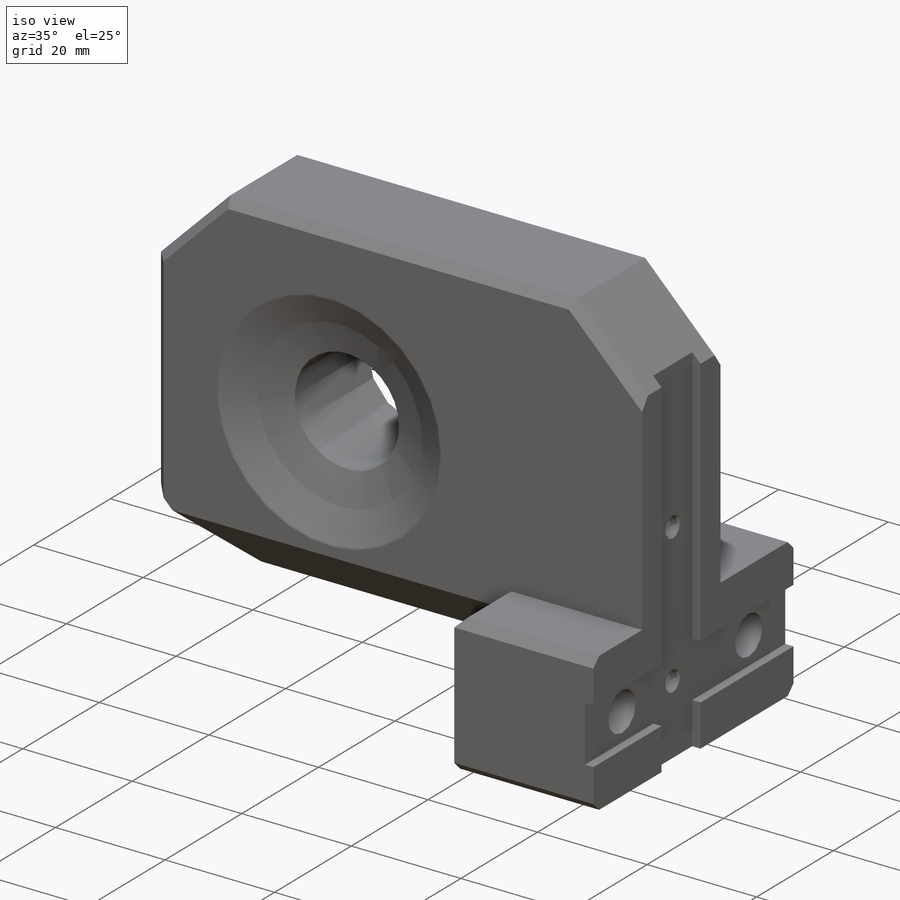
[diagram: iso view]
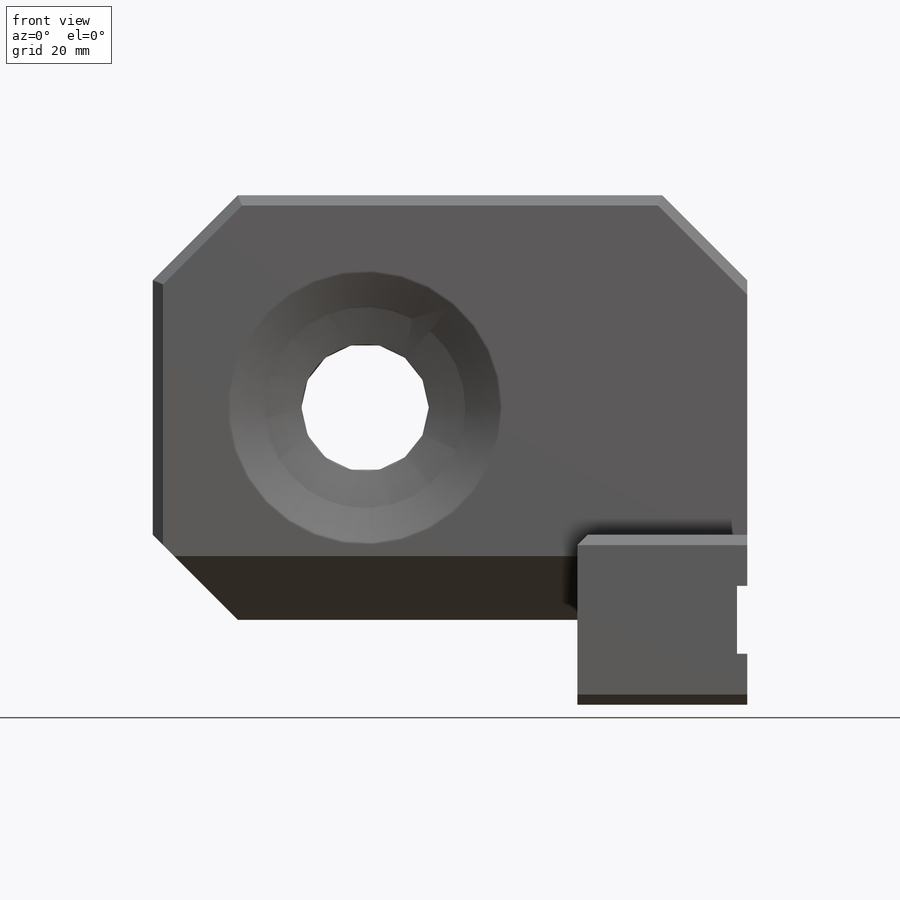
[diagram: front view]
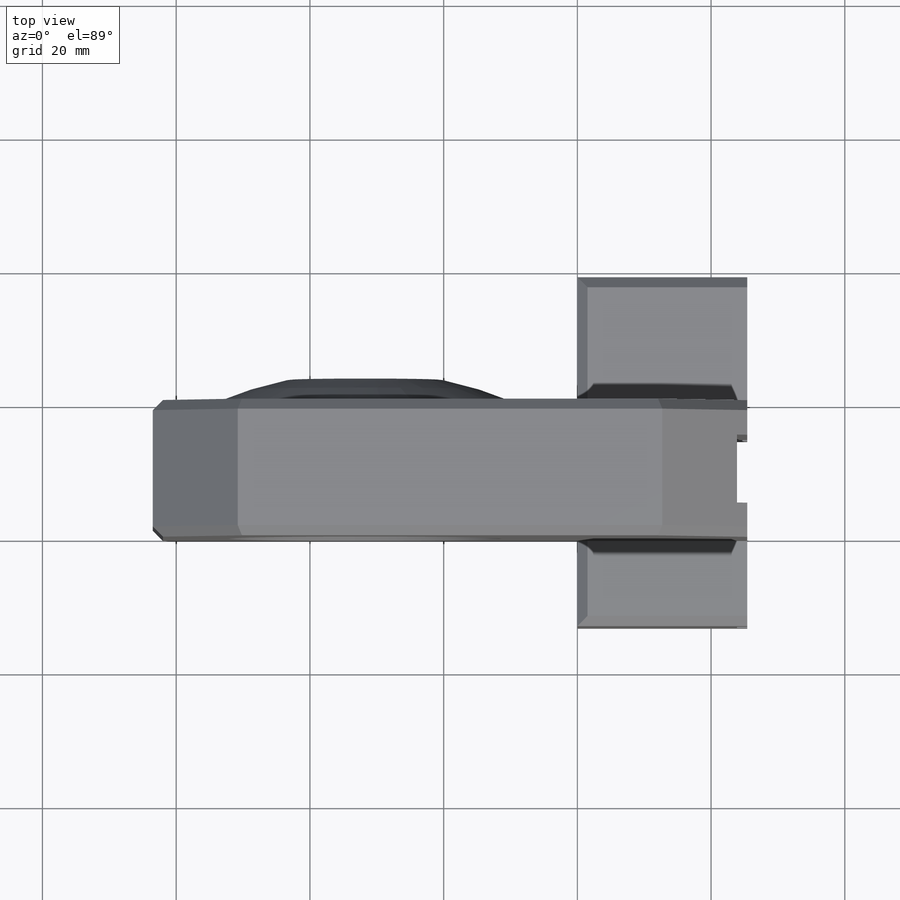
[diagram: top view]
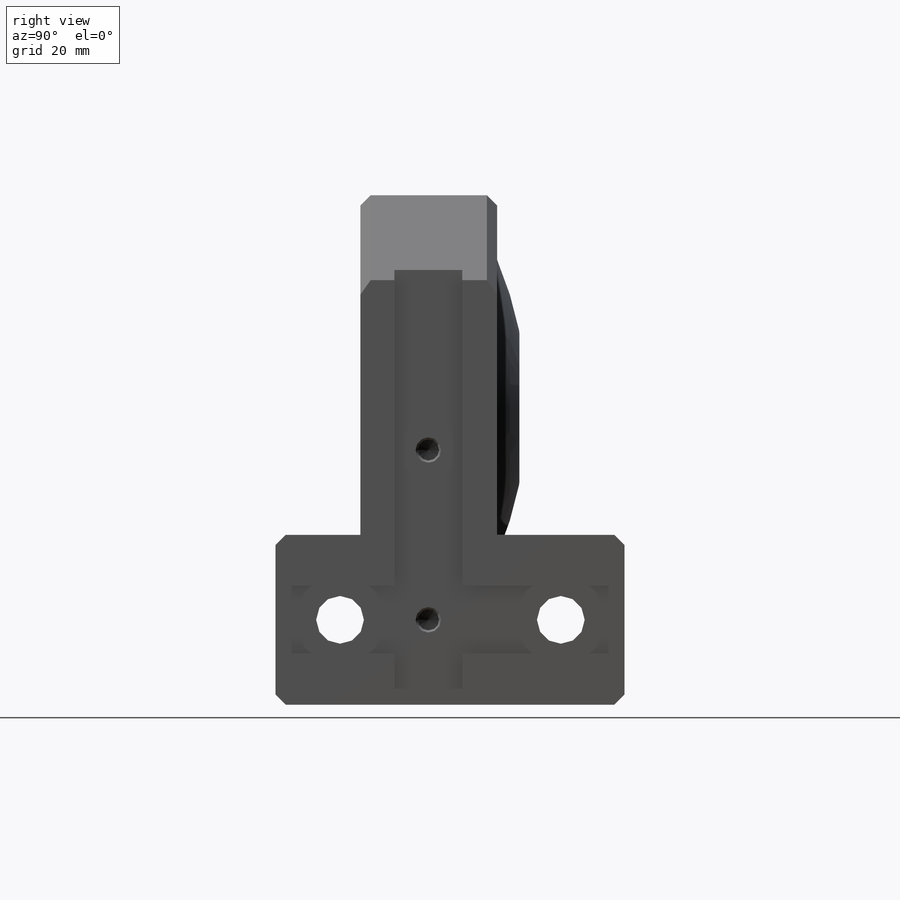
[diagram: right view]
SOLIDWORKS PART (.sldprt)
format: sldprt  version: not decoded by parser v0  size: 815,616 bytes
history: native  units: mm
features: extrude x17, sketch x14, plane x4, cut_extrude x4, chamfer x3, hole x2, fillet x2, material x1, cut_revolve x1 (+12 scaffold rows collapsed)
feature tree (60):
  scaffold x12  (default folders/planes/origin — collapsed)
  material  "6061-T6 Al"
  plane  "XY"
  plane  "XZ"
  plane  "YZ"
  sketch  "Sketch1"  dims[D1=76.2mm D2=25.4mm]
  extrude  "Extrude1"  Depth=20.447mm ID=164619364
  extrude  "ID"  [1 undecoded]
  extrude  "faceID"  Depth=0 cosFaceIDTag=0
  extrude  "faceID"  [1 undecoded]
  extrude  "faceID"  [1 undecoded]
  extrude  "faceID"  [1 undecoded]
  extrude  "faceID"  [1 undecoded]
  extrude  "faceID"  [1 undecoded]
  extrude  "faceID"  [1 undecoded]
  extrude  "faceID"  [1 undecoded]
  extrude  "faceID"  [1 undecoded]
  extrude  "faceID"  [1 undecoded]
  extrude  "faceID"  [1 undecoded]
  sketch  "Sketch60"  dims[D1=63.5mm D2=25.4mm D3=4.953mm]
  extrude  "Extrude6"  Depth=63.5mm
  plane  "Plane1"
  sketch  "Sketch64"  dims[c1.D1=38.1mm c1.D4=~130.702129mm c1.D5=~114.322858mm c1.D8=38.1mm c1.D2=20.32mm c1.D3=~6.888805mm c2.D1=38.1mm c2.D3=32.2326mm c2.D2=20.32mm c3.D3=11.43mm c3.D4=17.907mm c3.D5=22.225mm c3.D6=31.75mm c3.D7=~1.621987mm]
  cut_revolve  "Cut-Revolve1"  Angle=360deg
  sketch  "Sketch69"  dims[D3=44.45mm D1=63.5mm D2=63.5mm D4=31.75mm D5=31.75mm]
  cut_extrude  "Cut-Extrude23"  Depth=4.953mm
  sketch  "Sketch71"  dims[c1.D1=19.05mm c1.D2=19.05mm c1.D3=19.05mm c2.D2=31.75mm c2.D3=31.75mm]
  cut_extrude  "Cut-Extrude24"  [1 undecoded]
  sketch  "Sketch72"
  extrude  "Extrude7"  Depth=82.55mm
  sketch  "Sketch73"  dims[D1=82.55mm D2=25.4mm]
  extrude  "Extrude8"  Depth=19.05mm
  sketch  "Sketch81"  dims[c1.D1=~61.09448mm c1.D2=25.4mm c2.D1=25.4mm]
  extrude  "Extrude12"  Depth=12.7mm
  hole  "1/4 Clearance Hole1"  Diameter=7.14248mm Depth=25.40005mm
  sketch  "Sketch75"  dims[c1.D1=57.15mm c1.D2=31.75mm c1.D3=9.525mm c2.D1=33.02mm c2.D3=9.525mm]
  sketch  "Sketch74"  dims[hole-wizard template sketch: 47 standard entries collapsed; hole parameters kept: c15.Thru Hole Depth=~25.40005mm c15.Near C'Sink Dia.=~8.41248mm c15.D4=~3.666174mm c15.Near C'Sink Angle=90.0deg c15.Far C'Sink Dia.=~8.41248mm c15.D6=~9.919017mm c15.Far C'Sink Angle=90.0deg]
  sketch  "Sketch82"  dims[D1=12.7mm]
  cut_extrude  "Extrude13"  [1 undecoded]
  sketch  "Sketch83"  dims[c1.D4=10.16mm c1.D5=5.08mm c1.D1=~11.714404mm c1.D2=52.197mm c2.D1=10.16mm c2.D2=5.08mm c2.D3=12.7mm c2.D4=19.05mm c3.D3=10.16mm c3.D4=5.08mm c3.D5=38.1mm c3.D6=10.16mm]
  cut_extrude  "Extrude14"  Depth=1.524mm
  hole  "1/8 in dowel hole"  Diameter=3.175mm Depth=6.35mm
  sketch  "Sketch85"  dims[c1.D2=~7.14248mm c1.D1=~7.14248mm c2.D2=~7.14248mm c2.D4=~7.14248mm c2.D1=42.545mm c3.D2=23.495mm c3.D3=4.826mm c3.D1=4.826mm c4.D2=8.255mm c4.D3=4.826mm c4.D4=8.255mm c4.D1=13.335mm c5.D2=25.4mm c5.D3=12.7mm c5.D1=25.4mm c6.D2=~13.283796mm]
  sketch  "Sketch84"  dims[hole-wizard template sketch: 35 standard entries collapsed; hole parameters above]
  chamfer  "Chamfer2"  Distance=12.7mm Angle=45deg
  chamfer  "Chamfer3"  Distance=9.525mm Angle=45deg
  chamfer  "Chamfer1"  Distance=1.524mm Angle=45deg
  fillet  "Fillet5"  Radius=0.635mm
  fillet  "Fillet4"  Radius=2.54mm
decode coverage: 29 of 43 modeling features carry decoded parameters
note: ~ marks probable driven/reference dimensions
note: 13 parameter values undecoded
summary: no parameter record found for 13 features
note: suppression state not decoded; provenance and decode notes live in map.json
